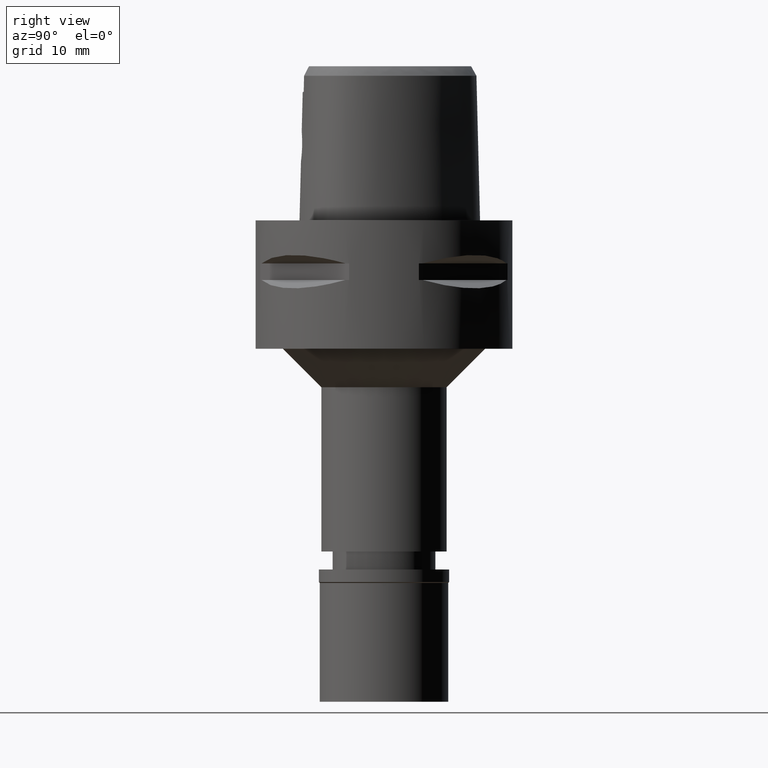
[diagram: clean part render]
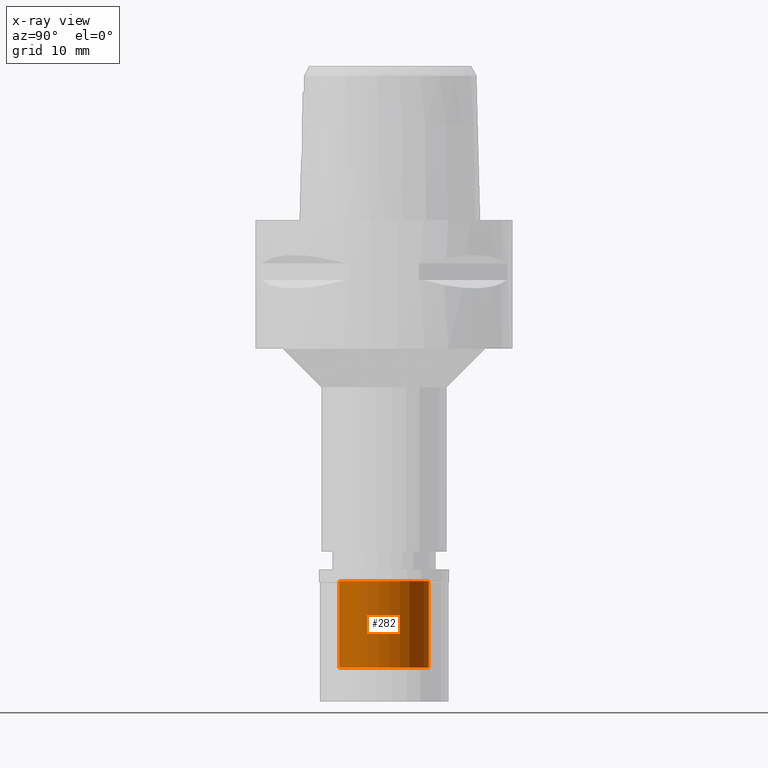
[diagram: x-ray — body ghosted, one internal face saturated and labeled with its STEP entity id]
A machine part, right view, then the same camera in x-ray: the body is ghosted and one INTERNAL B-rep face — a face not visible from any outside direction — is saturated and labeled: STEP entity #282.
In plain terms, the highlighted cylindrical surface (partial cylindrical patch) has radius 7 mm, axis along (0, 0, -1).
Its self-contained STEP definition (entity closure, byte-faithful):
#36 = VERTEX_POINT ( 'NONE', #999 ) ;
#144 = DIRECTION ( 'NONE',  ( 0.0000000000000000000, 1.000000000000000000, 0.0000000000000000000 ) ) ;
#188 = CARTESIAN_POINT ( 'NONE',  ( 0.0000000000000000000, 0.0000000000000000000, -1.800000000000000044 ) ) ;
#196 = AXIS2_PLACEMENT_3D ( 'NONE', #3083, #2358, #144 ) ;
#199 = EDGE_CURVE ( 'NONE', #570, #36, #739, .T. ) ;
#282 = ADVANCED_FACE ( 'NONE', ( #1670 ), #4229, .F. ) ;
#291 = CARTESIAN_POINT ( 'NONE',  ( 0.0000000000000000000, 7.000000000000000000, -15.29999999999999893 ) ) ;
#570 = VERTEX_POINT ( 'NONE', #2101 ) ;
#584 = DIRECTION ( 'NONE',  ( 0.0000000000000000000, -1.000000000000000000, 0.0000000000000000000 ) ) ;
#729 = VECTOR ( 'NONE', #1136, 1000.000000000000000 ) ;
#739 = CIRCLE ( 'NONE', #2045, 7.000000000000000000 ) ;
#907 = ORIENTED_EDGE ( 'NONE', *, *, #4479, .T. ) ;
#935 = CARTESIAN_POINT ( 'NONE',  ( 0.0000000000000000000, 0.0000000000000000000, 0.0000000000000000000 ) ) ;
#999 = CARTESIAN_POINT ( 'NONE',  ( 0.0000000000000000000, 7.000000000000000000, -1.800000000000000044 ) ) ;
#1033 = CIRCLE ( 'NONE', #196, 7.000000000000000000 ) ;
#1136 = DIRECTION ( 'NONE',  ( 0.0000000000000000000, 0.0000000000000000000, 1.000000000000000000 ) ) ;
#1238 = CARTESIAN_POINT ( 'NONE',  ( 0.0000000000000000000, 7.000000000000000000, -15.29999999999999893 ) ) ;
#1670 = FACE_OUTER_BOUND ( 'NONE', #4181, .T. ) ;
#1695 = DIRECTION ( 'NONE',  ( 0.0000000000000000000, 0.0000000000000000000, -1.000000000000000000 ) ) ;
#2045 = AXIS2_PLACEMENT_3D ( 'NONE', #188, #2334, #4192 ) ;
#2101 = CARTESIAN_POINT ( 'NONE',  ( 0.0000000000000000000, -7.000000000000000000, -1.800000000000000044 ) ) ;
#2217 = CARTESIAN_POINT ( 'NONE',  ( 0.0000000000000000000, -7.000000000000000000, -15.29999999999999893 ) ) ;
#2334 = DIRECTION ( 'NONE',  ( 0.0000000000000000000, 0.0000000000000000000, 1.000000000000000000 ) ) ;
#2358 = DIRECTION ( 'NONE',  ( 0.0000000000000000000, 0.0000000000000000000, -1.000000000000000000 ) ) ;
#2593 = VERTEX_POINT ( 'NONE', #1238 ) ;
#2778 = VERTEX_POINT ( 'NONE', #3917 ) ;
#2838 = DIRECTION ( 'NONE',  ( 0.0000000000000000000, 0.0000000000000000000, 1.000000000000000000 ) ) ;
#2853 = ORIENTED_EDGE ( 'NONE', *, *, #4000, .F. ) ;
#3083 = CARTESIAN_POINT ( 'NONE',  ( 0.0000000000000000000, 0.0000000000000000000, -15.29999999999999893 ) ) ;
#3186 = VECTOR ( 'NONE', #2838, 1000.000000000000000 ) ;
#3742 = EDGE_CURVE ( 'NONE', #2593, #2778, #1033, .T. ) ;
#3762 = ORIENTED_EDGE ( 'NONE', *, *, #3742, .T. ) ;
#3917 = CARTESIAN_POINT ( 'NONE',  ( 0.0000000000000000000, -7.000000000000000000, -15.29999999999999893 ) ) ;
#4000 = EDGE_CURVE ( 'NONE', #2593, #36, #4263, .T. ) ;
#4181 = EDGE_LOOP ( 'NONE', ( #3762, #907, #4264, #2853 ) ) ;
#4192 = DIRECTION ( 'NONE',  ( 0.0000000000000000000, -1.000000000000000000, 0.0000000000000000000 ) ) ;
#4229 = CYLINDRICAL_SURFACE ( 'NONE', #4579, 7.000000000000000000 ) ;
#4263 = LINE ( 'NONE', #291, #3186 ) ;
#4264 = ORIENTED_EDGE ( 'NONE', *, *, #199, .T. ) ;
#4409 = LINE ( 'NONE', #2217, #729 ) ;
#4479 = EDGE_CURVE ( 'NONE', #2778, #570, #4409, .T. ) ;
#4579 = AXIS2_PLACEMENT_3D ( 'NONE', #935, #1695, #584 ) ;